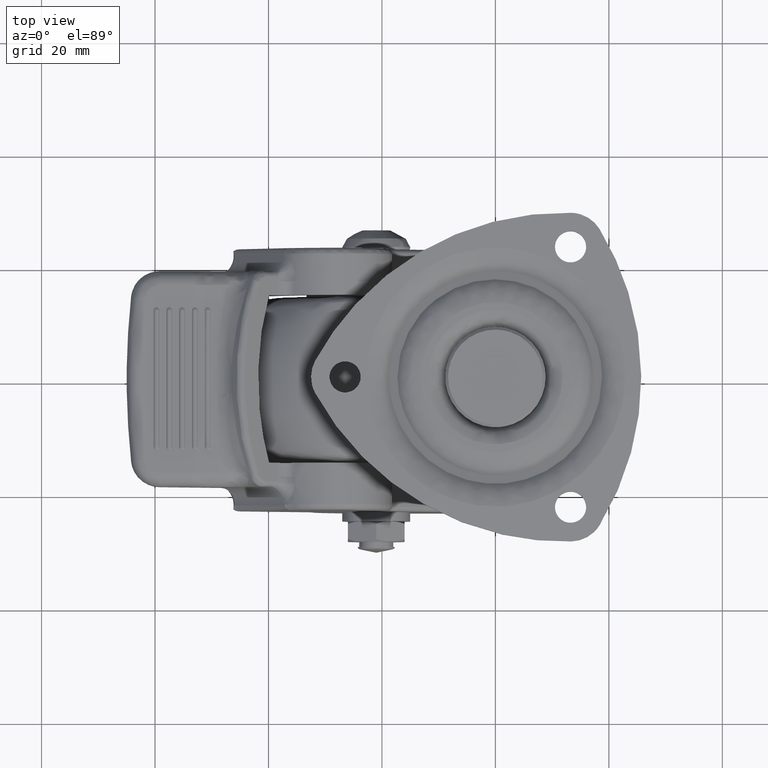
[diagram: clean part render]
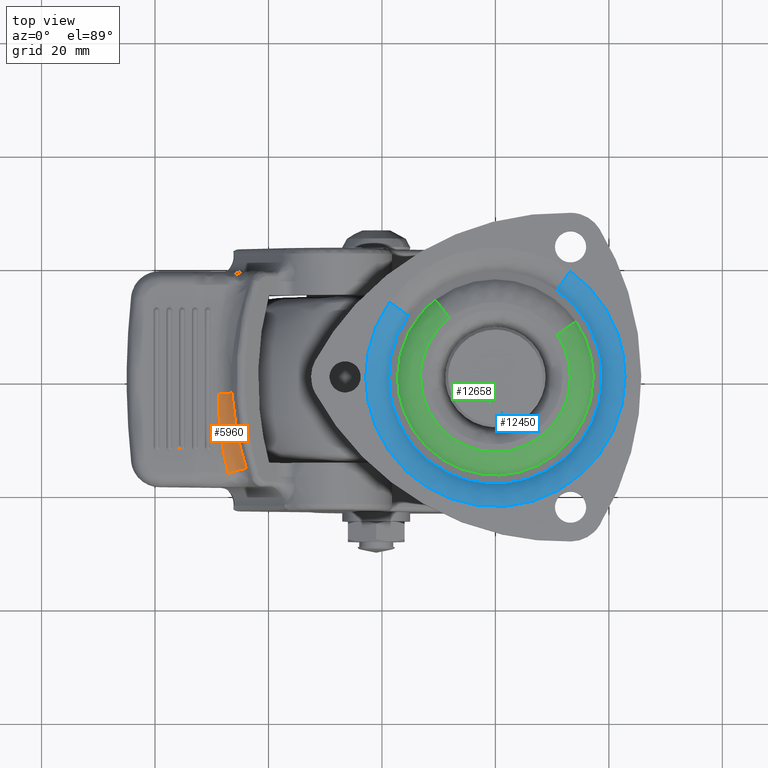
[diagram: same view with three faces highlighted in distinct colors, each labeled with its STEP entity id]
A machine part, top view with three faces highlighted in distinct colors.
Their STEP definitions:

[orange] entity #5960 — the highlighted face is a freeform B-spline surface patch.
#5806=CARTESIAN_POINT('',(-48.868185133040697,-2.682234509029950,-18.427378000000001));
#5807=VERTEX_POINT('',#5806);
#5808=CARTESIAN_POINT('',(-46.444611443495297,-2.521701660425795,-17.188207286405500));
#5809=VERTEX_POINT('',#5808);
#5810=CARTESIAN_POINT('',(-48.868185133040697,-2.682234509029950,-18.427378000000001));
#5811=CARTESIAN_POINT('',(-47.340988791554985,-2.581075967767512,-18.427377999999997));
#5812=CARTESIAN_POINT('',(-46.444611443495312,-2.521701660425799,-17.188207286405500));
#5820=(BOUNDED_CURVE()B_SPLINE_CURVE(2,(#5810,#5811,#5812),.UNSPECIFIED.,.F.,.U.)CURVE()GEOMETRIC_REPRESENTATION_ITEM()QUASI_UNIFORM_CURVE()RATIONAL_B_SPLINE_CURVE((1.0,0.890770199172744,1.0))REPRESENTATION_ITEM(''));
#5821=EDGE_CURVE('',#5807,#5809,#5820,.T.);
#5853=CARTESIAN_POINT('',(-46.441224709851646,-2.453151805348706,-17.177297524356817));
#5854=CARTESIAN_POINT('',(-46.439686360386425,-2.475825132221563,-17.177246839496707));
#5855=CARTESIAN_POINT('',(-46.438148014256917,-2.498498409929812,-17.177196154746497));
#5856=CARTESIAN_POINT('',(-46.282792232224899,-4.788246290504441,-17.172077560917401));
#5857=CARTESIAN_POINT('',(-45.991303636772940,-7.049483253237103,-17.258308341769865));
#5858=CARTESIAN_POINT('',(-45.141980748915650,-11.482140667681442,-17.601620755251972));
#5859=CARTESIAN_POINT('',(-44.584599973608043,-13.660011605290423,-17.858261923533682));
#5860=CARTESIAN_POINT('',(-43.882469824363227,-15.819953090614572,-18.199474253321480));
#5861=CARTESIAN_POINT('',(-43.875519198467074,-15.841335088294372,-18.202852030586939));
#5862=CARTESIAN_POINT('',(-43.868568595265273,-15.862717016160257,-18.206229796823688));
#5863=CARTESIAN_POINT('',(-46.445217986444192,-2.453419734349445,-17.182817579831870));
#5864=CARTESIAN_POINT('',(-46.443681444801918,-2.476092015602450,-17.182769502977504));
#5865=CARTESIAN_POINT('',(-46.442144904826513,-2.498764272260839,-17.182721426175320));
#5866=CARTESIAN_POINT('',(-46.286962949194830,-4.788535565623400,-17.177865937672355));
#5867=CARTESIAN_POINT('',(-45.995648223129429,-7.049800132517333,-17.264366131765609));
#5868=CARTESIAN_POINT('',(-45.146668773606144,-11.482521693877333,-17.608232481195639));
#5869=CARTESIAN_POINT('',(-44.589455451087311,-13.660428554168874,-17.865153932689108));
#5870=CARTESIAN_POINT('',(-43.887495649094433,-15.820416146914175,-18.206672491415461));
#5871=CARTESIAN_POINT('',(-43.880546131411378,-15.841800379926353,-18.210053581409827));
#5872=CARTESIAN_POINT('',(-43.873596625084467,-15.863184577994680,-18.213434665879177));
#5873=CARTESIAN_POINT('',(-47.344047920247490,-2.513726753013612,-18.425303789402339));
#5874=CARTESIAN_POINT('',(-47.343028458318642,-2.536171039371300,-18.425995025028335));
#5875=CARTESIAN_POINT('',(-47.342008748784551,-2.558620776960509,-18.426686428540506));
#5876=CARTESIAN_POINT('',(-47.237726517604848,-4.854479202253596,-18.497393917766004));
#5877=CARTESIAN_POINT('',(-46.999834707082634,-7.123042062620926,-18.664534142539843));
#5878=CARTESIAN_POINT('',(-46.264687150027669,-11.573390304222945,-19.185022620528343));
#5879=CARTESIAN_POINT('',(-45.767985711106860,-13.761631138722130,-19.537994837976282));
#5880=CARTESIAN_POINT('',(-45.132364708258507,-15.935112637711899,-19.989636355640940));
#5881=CARTESIAN_POINT('',(-45.125942266728863,-15.957073928765018,-19.994199831716408));
#5882=CARTESIAN_POINT('',(-45.119517240063260,-15.979044059590803,-19.998765144664347));
#5883=CARTESIAN_POINT('',(-48.875557295379579,-2.612459144824384,-18.427387315215750));
#5884=CARTESIAN_POINT('',(-48.875385268511032,-2.635869002978835,-18.427384210140431));
#5885=CARTESIAN_POINT('',(-48.875213241830131,-2.659278835604998,-18.427381105068527));
#5886=CARTESIAN_POINT('',(-48.857839512916087,-5.023540494324220,-18.427067510238949));
#5887=CARTESIAN_POINT('',(-48.703074639471566,-7.376608803520749,-18.511487683645971));
#5888=CARTESIAN_POINT('',(-48.115948467138281,-12.034060910725156,-18.839118404993869));
#5889=CARTESIAN_POINT('',(-47.684500927252017,-14.345034899421403,-19.081927394274807));
#5890=CARTESIAN_POINT('',(-47.098642286678796,-16.664699795838374,-19.403685520825160));
#5891=CARTESIAN_POINT('',(-47.092842192162067,-16.687664850400353,-19.406870977889838));
#5892=CARTESIAN_POINT('',(-47.087042107173055,-16.710629867238008,-19.410056429721827));
#5893=CARTESIAN_POINT('',(-48.882396993823043,-2.612900082240474,-18.427396620211521));
#5894=CARTESIAN_POINT('',(-48.882227913264138,-2.636314198081592,-18.427390413460824));
#5895=CARTESIAN_POINT('',(-48.882058833073799,-2.659728262884912,-18.427384206723648));
#5896=CARTESIAN_POINT('',(-48.864983631709926,-5.024285994148915,-18.426757395937564));
#5897=CARTESIAN_POINT('',(-48.710482192921077,-7.377711589540802,-18.510822069951168));
#5898=CARTESIAN_POINT('',(-48.123751671291039,-12.036002671597315,-18.837660392996227));
#5899=CARTESIAN_POINT('',(-47.692438129365975,-14.347451052198950,-19.080038601820796));
#5900=CARTESIAN_POINT('',(-47.106622088001565,-16.667660700561783,-19.401307539558363));
#5901=CARTESIAN_POINT('',(-47.100822900215384,-16.690629227375815,-19.404487887599824));
#5902=CARTESIAN_POINT('',(-47.095023731463456,-16.713597678801882,-19.407668225202659));
#5910=(BOUNDED_SURFACE()B_SPLINE_SURFACE(3,2,((#5853,#5863,#5873,#5883,#5893),(#5854,#5864,#5874,#5884,#5894),(#5855,#5865,#5875,#5885,#5895),(#5856,#5866,#5876,#5886,#5896),(#5857,#5867,#5877,#5887,#5897),(#5858,#5868,#5878,#5888,#5898),(#5859,#5869,#5879,#5889,#5899),(#5860,#5870,#5880,#5890,#5900),(#5861,#5871,#5881,#5891,#5901),(#5862,#5872,#5882,#5892,#5902)),.UNSPECIFIED.,.F.,.F.,.U.)B_SPLINE_SURFACE_WITH_KNOTS((4,2,2,2,4),(3,1,1,3),(0.0,0.071705666620248,7.242272488914402,14.412839311208559,14.484544977833380),(0.0,0.019497747874865,3.906449662947995,3.926050010862705),.UNSPECIFIED.)GEOMETRIC_REPRESENTATION_ITEM()RATIONAL_B_SPLINE_SURFACE(((1.001092582014442,1.000546291007221,0.891094761798508,1.000549165671488,1.001098331342976),(1.001093667396233,1.000546833698117,0.890986574256584,1.000549711218104,1.001099422436207),(1.001094752778024,1.000547376389012,0.890878386714660,1.000550256764719,1.001100513529438),(1.001204376341345,1.000602188170672,0.879951444738545,1.000605356974101,1.001210713948201),(1.001324539219855,1.000662269609927,0.867973976013891,1.000665754570796,1.001331509141592),(1.001590625659531,1.000795312829765,0.841451292396519,1.000799497883780,1.001598995767560),(1.001736808304670,1.000868404152335,0.826880252804630,1.000872973823725,1.001745947647450),(1.001902008978526,1.000951004489263,0.810413554195689,1.000956008815871,1.001912017631743),(1.001903644628726,1.000951822314363,0.810250517579396,1.000956830944488,1.001913661888977),(1.001905280278926,1.000952640139463,0.810087480963103,1.000957653073105,1.001915306146211)))REPRESENTATION_ITEM('')SURFACE());
#5911=CARTESIAN_POINT('',(-47.096448243937601,-16.638771659013649,-19.402877469059302));
#5912=VERTEX_POINT('',#5911);
#5913=CARTESIAN_POINT('',(-43.899479432127848,-15.799493610597899,-18.210499999820250));
#5914=VERTEX_POINT('',#5913);
#5915=CARTESIAN_POINT('',(-47.096448243937601,-16.638771659013649,-19.402877469059302));
#5916=CARTESIAN_POINT('',(-45.138784566210738,-15.913160181099283,-19.985074715328778));
#5917=CARTESIAN_POINT('',(-43.899479432127968,-15.799493610597921,-18.210499999820161));
#5925=(BOUNDED_CURVE()B_SPLINE_CURVE(2,(#5915,#5916,#5917),.UNSPECIFIED.,.F.,.U.)CURVE()GEOMETRIC_REPRESENTATION_ITEM()QUASI_UNIFORM_CURVE()RATIONAL_B_SPLINE_CURVE((1.0,0.810576590812144,1.0))REPRESENTATION_ITEM(''));
#5926=EDGE_CURVE('',#5912,#5914,#5925,.T.);
#5927=ORIENTED_EDGE('',*,*,#5926,.T.);
#5928=CARTESIAN_POINT('',(-46.444611443495297,-2.521701660425795,-17.188207286405500));
#5929=CARTESIAN_POINT('',(-46.367821414181641,-3.656055988518551,-17.185932697335652));
#5930=CARTESIAN_POINT('',(-46.256985176603308,-4.786521373495437,-17.206334535171958));
#5931=CARTESIAN_POINT('',(-46.075597542966293,-6.194723043260479,-17.259684593626961));
#5932=CARTESIAN_POINT('',(-46.037168321824687,-6.476150717709321,-17.271751304991952));
#5933=CARTESIAN_POINT('',(-45.956150646694340,-7.037543128114398,-17.298613111302888));
#5934=CARTESIAN_POINT('',(-45.828340022007382,-7.877798877179796,-17.343011024964230));
#5935=CARTESIAN_POINT('',(-45.681730320637797,-8.712580223226009,-17.399602419504038));
#5936=CARTESIAN_POINT('',(-45.363485983711492,-10.374880513244030,-17.528764778428059));
#5937=CARTESIAN_POINT('',(-45.117993218582271,-11.473407119993659,-17.636166117044201));
#5938=CARTESIAN_POINT('',(-44.559689937168478,-13.651075947197681,-17.892425070178330));
#5939=CARTESIAN_POINT('',(-44.246883545756333,-14.730218707509810,-18.041286676924919));
#5940=CARTESIAN_POINT('',(-43.899479432127897,-15.799493610597899,-18.210499999820250));
#5941=B_SPLINE_CURVE_WITH_KNOTS('',3,(#5928,#5929,#5930,#5931,#5932,#5933,#5934,#5935,#5936,#5937,#5938,#5939,#5940),.UNSPECIFIED.,.F.,.U.,(4,2,2,1,2,2,4),(0.0,0.250000000000001,0.312500000000001,0.375000000000001,0.500000000000001,0.750000000000000,1.0),.UNSPECIFIED.);
#5942=EDGE_CURVE('',#5809,#5914,#5941,.T.);
#5943=ORIENTED_EDGE('',*,*,#5942,.F.);
#5944=ORIENTED_EDGE('',*,*,#5821,.F.);
#5945=CARTESIAN_POINT('',(-47.096448243937601,-16.638771659013649,-19.402877469059302));
#5946=CARTESIAN_POINT('',(-47.384418287529542,-15.498929187595049,-19.244492906798609));
#5947=CARTESIAN_POINT('',(-47.636161991897339,-14.353201218841599,-19.104516986606050));
#5948=CARTESIAN_POINT('',(-48.069621225536423,-12.050201098605120,-18.862540886123909));
#5949=CARTESIAN_POINT('',(-48.251331257229189,-10.892928481203230,-18.760537386830269));
#5950=CARTESIAN_POINT('',(-48.545861466065681,-8.566887294300839,-18.595883547488089));
#5951=CARTESIAN_POINT('',(-48.658679744640509,-7.398118728939018,-18.533229699978651));
#5952=CARTESIAN_POINT('',(-48.815406292593707,-5.048963991231533,-18.448979083320790));
#5953=CARTESIAN_POINT('',(-48.859315842965628,-3.868578283045291,-18.427378000000019));
#5954=CARTESIAN_POINT('',(-48.868185133040598,-2.682234509030070,-18.427378000000001));
#5955=B_SPLINE_CURVE_WITH_KNOTS('',3,(#5945,#5946,#5947,#5948,#5949,#5950,#5951,#5952,#5953,#5954),.UNSPECIFIED.,.F.,.U.,(4,2,2,2,4),(0.0,0.250000000000000,0.500000000000000,0.750000000000000,1.0),.UNSPECIFIED.);
#5956=EDGE_CURVE('',#5912,#5807,#5955,.T.);
#5957=ORIENTED_EDGE('',*,*,#5956,.F.);
#5958=EDGE_LOOP('',(#5927,#5943,#5944,#5957));
#5959=FACE_OUTER_BOUND('',#5958,.T.);
#5960=ADVANCED_FACE('',(#5959),#5910,.F.);

[blue] entity #12450 — the highlighted face is a freeform B-spline surface patch.
#12295=CARTESIAN_POINT('',(10.784301983175190,15.242494924516313,-2.254683351545476));
#12296=CARTESIAN_POINT('',(26.026796907691487,4.458192941341120,-2.254683351545476));
#12297=CARTESIAN_POINT('',(15.242494924516313,-10.784301983175189,-2.254683351545476));
#12298=CARTESIAN_POINT('',(4.458192941341122,-26.026796907691487,-2.254683351545476));
#12299=CARTESIAN_POINT('',(-10.784301983175183,-15.242494924516313,-2.254683351545476));
#12300=CARTESIAN_POINT('',(-26.026796907691487,-4.458192941341123,-2.254683351545476));
#12301=CARTESIAN_POINT('',(-15.242494924516313,10.784301983175181,-2.254683351545476));
#12302=CARTESIAN_POINT('',(11.686646660563257,16.517865753959857,0.123447379301364));
#12303=CARTESIAN_POINT('',(28.204512414523116,4.831219093396607,0.123447379301363));
#12304=CARTESIAN_POINT('',(16.517865753959857,-11.686646660563255,0.123447379301364));
#12305=CARTESIAN_POINT('',(4.831219093396610,-28.204512414523116,0.123447379301363));
#12306=CARTESIAN_POINT('',(-11.686646660563252,-16.517865753959857,0.123447379301364));
#12307=CARTESIAN_POINT('',(-28.204512414523116,-4.831219093396611,0.123447379301363));
#12308=CARTESIAN_POINT('',(-16.517865753959857,11.686646660563252,0.123447379301364));
#12309=CARTESIAN_POINT('',(13.328394057546006,18.838305816273436,-0.005105505204566));
#12310=CARTESIAN_POINT('',(32.166699873819432,5.509911758727430,-0.005105505204566));
#12311=CARTESIAN_POINT('',(18.838305816273436,-13.328394057546006,-0.005105505204566));
#12312=CARTESIAN_POINT('',(5.509911758727431,-32.166699873819432,-0.005105505204566));
#12313=CARTESIAN_POINT('',(-13.328394057545996,-18.838305816273436,-0.005105505204566));
#12314=CARTESIAN_POINT('',(-32.166699873819432,-5.509911758727434,-0.005105505204566));
#12315=CARTESIAN_POINT('',(-18.838305816273436,13.328394057545996,-0.005105505204566));
#12323=(BOUNDED_SURFACE()B_SPLINE_SURFACE(2,2,((#12295,#12302,#12309),(#12296,#12303,#12310),(#12297,#12304,#12311),(#12298,#12305,#12312),(#12299,#12306,#12313),(#12300,#12307,#12314),(#12301,#12308,#12315)),.UNSPECIFIED.,.F.,.F.,.U.)B_SPLINE_SURFACE_WITH_KNOTS((3,2,2,3),(3,3),(0.0,38.234504855069112,76.469009710138209,114.703514565207300),(0.0,5.292321078349512),.UNSPECIFIED.)GEOMETRIC_REPRESENTATION_ITEM()RATIONAL_B_SPLINE_SURFACE(((0.924786724053157,0.803551614694217,0.924326571111157),(0.653922963729280,0.568196795783681,0.653597586463609),(0.924786724053157,0.803551614694217,0.924326571111157),(0.653922963729280,0.568196795783681,0.653597586463609),(0.924786724053157,0.803551614694217,0.924326571111157),(0.653922963729280,0.568196795783681,0.653597586463609),(0.924786724053157,0.803551614694217,0.924326571111157)))REPRESENTATION_ITEM('')SURFACE());
#12324=CARTESIAN_POINT('',(10.858366824369050,15.347177913520181,-2.068774999933832));
#12325=VERTEX_POINT('',#12324);
#12326=CARTESIAN_POINT('',(18.800000000000001,0.0,-2.068775000000000));
#12327=VERTEX_POINT('',#12326);
#12328=CARTESIAN_POINT('',(10.858366824369046,15.347177913520177,-2.068774999933831));
#12329=CARTESIAN_POINT('',(18.800000000000008,9.728349051795371,-2.068775000000001));
#12330=CARTESIAN_POINT('',(18.800000000000001,0.0,-2.068775000000000));
#12338=(BOUNDED_CURVE()B_SPLINE_CURVE(2,(#12328,#12329,#12330),.UNSPECIFIED.,.F.,.U.)B_SPLINE_CURVE_WITH_KNOTS((3,3),(0.349340826588343,0.500000000000000),.UNSPECIFIED.)CURVE()GEOMETRIC_REPRESENTATION_ITEM()RATIONAL_B_SPLINE_CURVE((0.859724235322383,0.823491799022743,1.0))REPRESENTATION_ITEM(''));
#12339=EDGE_CURVE('',#12325,#12327,#12338,.T.);
#12340=ORIENTED_EDGE('',*,*,#12339,.T.);
#12341=CARTESIAN_POINT('',(-18.800000000000001,0.0,-2.068775000000000));
#12342=VERTEX_POINT('',#12341);
#12343=CARTESIAN_POINT('',(18.800000000000001,0.0,-2.068775000000000));
#12344=CARTESIAN_POINT('',(18.799999999999997,-18.799999999999997,-2.068775000000001));
#12345=CARTESIAN_POINT('',(0.0,-18.800000000000001,-2.068775000000000));
#12346=CARTESIAN_POINT('',(-18.799999999999997,-18.799999999999997,-2.068775000000001));
#12347=CARTESIAN_POINT('',(-18.800000000000001,0.0,-2.068775000000000));
#12355=(BOUNDED_CURVE()B_SPLINE_CURVE(2,(#12343,#12344,#12345,#12346,#12347),.UNSPECIFIED.,.F.,.U.)B_SPLINE_CURVE_WITH_KNOTS((3,2,3),(0.500000000000000,0.750000000000000,1.0),.UNSPECIFIED.)CURVE()GEOMETRIC_REPRESENTATION_ITEM()RATIONAL_B_SPLINE_CURVE((1.0,0.707106781186547,1.0,0.707106781186547,1.0))REPRESENTATION_ITEM(''));
#12356=EDGE_CURVE('',#12327,#12342,#12355,.T.);
#12357=ORIENTED_EDGE('',*,*,#12356,.T.);
#12358=CARTESIAN_POINT('',(-15.347177913520181,10.858366824369050,-2.068774999933831));
#12359=VERTEX_POINT('',#12358);
#12360=CARTESIAN_POINT('',(-18.800000000000001,0.0,-2.068775000000000));
#12361=CARTESIAN_POINT('',(-18.800000000000001,5.978160093197330,-2.068775000000000));
#12362=CARTESIAN_POINT('',(-15.347177913520177,10.858366824369046,-2.068774999933831));
#12370=(BOUNDED_CURVE()B_SPLINE_CURVE(2,(#12360,#12361,#12362),.UNSPECIFIED.,.F.,.U.)B_SPLINE_CURVE_WITH_KNOTS((3,3),(0.0,0.099340826588343),.UNSPECIFIED.)CURVE()GEOMETRIC_REPRESENTATION_ITEM()RATIONAL_B_SPLINE_CURVE((1.0,0.883614982163805,0.859724235322383))REPRESENTATION_ITEM(''));
#12371=EDGE_CURVE('',#12342,#12359,#12370,.T.);
#12372=ORIENTED_EDGE('',*,*,#12371,.T.);
#12373=CARTESIAN_POINT('',(-18.653898074394419,13.197922715108330,-1.093390E-015));
#12374=VERTEX_POINT('',#12373);
#12375=CARTESIAN_POINT('',(-15.347177913520179,10.858366824369046,-2.068774999933831));
#12376=CARTESIAN_POINT('',(-16.569276744533315,11.723020735171382,-1.356902E-009));
#12377=CARTESIAN_POINT('',(-18.653898074394419,13.197922715108326,-1.093390E-015));
#12385=(BOUNDED_CURVE()B_SPLINE_CURVE(2,(#12375,#12376,#12377),.UNSPECIFIED.,.F.,.U.)B_SPLINE_CURVE_WITH_KNOTS((3,3),(-1.607795409204541,-0.394741634238144),.UNSPECIFIED.)CURVE()GEOMETRIC_REPRESENTATION_ITEM()RATIONAL_B_SPLINE_CURVE((0.914274471626309,0.814042982510911,0.913856088008467))REPRESENTATION_ITEM(''));
#12386=EDGE_CURVE('',#12359,#12374,#12385,.T.);
#12387=ORIENTED_EDGE('',*,*,#12386,.T.);
#12388=CARTESIAN_POINT('',(-22.850669080457550,0.0,0.0));
#12389=VERTEX_POINT('',#12388);
#12390=CARTESIAN_POINT('',(-22.850669080457550,0.0,0.0));
#12391=CARTESIAN_POINT('',(-22.850669080457546,7.266221170281439,0.0));
#12392=CARTESIAN_POINT('',(-18.653898074394416,13.197922715108326,-1.093390E-015));
#12400=(BOUNDED_CURVE()B_SPLINE_CURVE(2,(#12390,#12391,#12392),.UNSPECIFIED.,.F.,.U.)B_SPLINE_CURVE_WITH_KNOTS((3,3),(0.0,0.099340826589398),.UNSPECIFIED.)CURVE()GEOMETRIC_REPRESENTATION_ITEM()RATIONAL_B_SPLINE_CURVE((1.0,0.883614982162569,0.859724235321876))REPRESENTATION_ITEM(''));
#12401=EDGE_CURVE('',#12389,#12374,#12400,.T.);
#12402=ORIENTED_EDGE('',*,*,#12401,.F.);
#12403=CARTESIAN_POINT('',(22.850669080457550,0.0,0.0));
#12404=VERTEX_POINT('',#12403);
#12405=CARTESIAN_POINT('',(22.850669080457550,0.0,0.0));
#12406=CARTESIAN_POINT('',(22.850669080457546,-22.850669080457546,0.0));
#12407=CARTESIAN_POINT('',(0.0,-22.850669080457550,0.0));
#12408=CARTESIAN_POINT('',(-22.850669080457546,-22.850669080457546,0.0));
#12409=CARTESIAN_POINT('',(-22.850669080457550,0.0,0.0));
#12417=(BOUNDED_CURVE()B_SPLINE_CURVE(2,(#12405,#12406,#12407,#12408,#12409),.UNSPECIFIED.,.F.,.U.)B_SPLINE_CURVE_WITH_KNOTS((3,2,3),(0.500000000000000,0.750000000000000,1.0),.UNSPECIFIED.)CURVE()GEOMETRIC_REPRESENTATION_ITEM()RATIONAL_B_SPLINE_CURVE((1.0,0.707106781186547,1.0,0.707106781186547,1.0))REPRESENTATION_ITEM(''));
#12418=EDGE_CURVE('',#12404,#12389,#12417,.T.);
#12419=ORIENTED_EDGE('',*,*,#12418,.F.);
#12420=CARTESIAN_POINT('',(13.197922715108341,18.653898074394419,-9.719018E-016));
#12421=VERTEX_POINT('',#12420);
#12422=CARTESIAN_POINT('',(13.197922715108339,18.653898074394416,-9.719018E-016));
#12423=CARTESIAN_POINT('',(22.850669080457550,11.824430046801535,0.0));
#12424=CARTESIAN_POINT('',(22.850669080457550,0.0,0.0));
#12432=(BOUNDED_CURVE()B_SPLINE_CURVE(2,(#12422,#12423,#12424),.UNSPECIFIED.,.F.,.U.)B_SPLINE_CURVE_WITH_KNOTS((3,3),(0.349340826589398,0.500000000000000),.UNSPECIFIED.)CURVE()GEOMETRIC_REPRESENTATION_ITEM()RATIONAL_B_SPLINE_CURVE((0.859724235321876,0.823491799023979,1.0))REPRESENTATION_ITEM(''));
#12433=EDGE_CURVE('',#12421,#12404,#12432,.T.);
#12434=ORIENTED_EDGE('',*,*,#12433,.F.);
#12435=CARTESIAN_POINT('',(10.858366824369046,15.347177913520179,-2.068774999933831));
#12436=CARTESIAN_POINT('',(11.723020735171378,16.569276744533322,-1.356903E-009));
#12437=CARTESIAN_POINT('',(13.197922715108337,18.653898074394419,-9.719018E-016));
#12445=(BOUNDED_CURVE()B_SPLINE_CURVE(2,(#12435,#12436,#12437),.UNSPECIFIED.,.F.,.U.)B_SPLINE_CURVE_WITH_KNOTS((3,3),(-1.607795409204541,-0.394741634238144),.UNSPECIFIED.)CURVE()GEOMETRIC_REPRESENTATION_ITEM()RATIONAL_B_SPLINE_CURVE((0.914274471626309,0.814042982510911,0.913856088008467))REPRESENTATION_ITEM(''));
#12446=EDGE_CURVE('',#12325,#12421,#12445,.T.);
#12447=ORIENTED_EDGE('',*,*,#12446,.F.);
#12448=EDGE_LOOP('',(#12340,#12357,#12372,#12387,#12402,#12419,#12434,#12447));
#12449=FACE_OUTER_BOUND('',#12448,.T.);
#12450=ADVANCED_FACE('',(#12449),#12323,.T.);

[green] entity #12658 — the highlighted face is a freeform B-spline surface patch.
#12503=CARTESIAN_POINT('',(-10.660627691782096,13.724463558583620,-2.254983057805083));
#12504=CARTESIAN_POINT('',(-23.621372064123381,3.657063126347719,-2.254983057805082));
#12505=CARTESIAN_POINT('',(-14.311704867972390,-9.858244596566692,-2.254983057805082));
#12506=CARTESIAN_POINT('',(-4.453460271405697,-24.169949464539076,-2.254983057805083));
#12507=CARTESIAN_POINT('',(9.858244596566692,-14.311704867972390,-2.254983057805082));
#12508=CARTESIAN_POINT('',(24.169949464539076,-4.453460271405698,-2.254983057805083));
#12509=CARTESIAN_POINT('',(14.311704867972390,9.858244596566690,-2.254983057805082));
#12510=CARTESIAN_POINT('',(-9.702351391694766,12.490781214556053,0.123260597122288));
#12511=CARTESIAN_POINT('',(-21.498063598708782,3.328332302683014,0.123260597122288));
#12512=CARTESIAN_POINT('',(-13.025235817055762,-8.972093946672395,0.123260597122288));
#12513=CARTESIAN_POINT('',(-4.053141870383366,-21.997329763728168,0.123260597122288));
#12514=CARTESIAN_POINT('',(8.972093946672395,-13.025235817055762,0.123260597122288));
#12515=CARTESIAN_POINT('',(21.997329763728168,-4.053141870383371,0.123260597122288));
#12516=CARTESIAN_POINT('',(13.025235817055762,8.972093946672395,0.123260597122288));
#12517=CARTESIAN_POINT('',(-7.958644682509930,10.245937863961139,-0.005089389672772));
#12518=CARTESIAN_POINT('',(-17.634431349351253,2.730164381084863,-0.005089389672772));
#12519=CARTESIAN_POINT('',(-10.684340278850822,-7.359629114318333,-0.005089389672772));
#12520=CARTESIAN_POINT('',(-3.324711164532491,-18.043969393169160,-0.005089389672772));
#12521=CARTESIAN_POINT('',(7.359629114318333,-10.684340278850822,-0.005089389672772));
#12522=CARTESIAN_POINT('',(18.043969393169160,-3.324711164532493,-0.005089389672772));
#12523=CARTESIAN_POINT('',(10.684340278850824,7.359629114318331,-0.005089389672772));
#12531=(BOUNDED_SURFACE()B_SPLINE_SURFACE(2,2,((#12503,#12510,#12517),(#12504,#12511,#12518),(#12505,#12512,#12519),(#12506,#12513,#12520),(#12507,#12514,#12521),(#12508,#12515,#12522),(#12509,#12516,#12523)),.UNSPECIFIED.,.F.,.F.,.U.)B_SPLINE_SURFACE_WITH_KNOTS((3,2,2,3),(3,3),(0.0,27.641787019015521,56.435315163823347,85.228843308631184),(0.0,5.292320125330656),.UNSPECIFIED.)GEOMETRIC_REPRESENTATION_ITEM()RATIONAL_B_SPLINE_SURFACE(((0.904524520146832,0.787238538536154,0.907051395029548),(0.665154708385884,0.578906827694558,0.667012881037155),(0.925339286386914,0.805354339478901,0.927924309289756),(0.654313684302508,0.569471514703544,0.656141571526630),(0.925339286386914,0.805354339478901,0.927924309289756),(0.654313684302508,0.569471514703544,0.656141571526630),(0.925339286386914,0.805354339478901,0.927924309289756)))REPRESENTATION_ITEM('')SURFACE());
#12532=CARTESIAN_POINT('',(-8.096999572229132,10.424055578504991,-9.905429E-016));
#12533=VERTEX_POINT('',#12532);
#12534=CARTESIAN_POINT('',(-13.199330919542421,0.0,0.0));
#12535=VERTEX_POINT('',#12534);
#12536=CARTESIAN_POINT('',(-8.096999572229132,10.424055578504994,-9.905429E-016));
#12537=CARTESIAN_POINT('',(-13.199330919542417,6.460763704952251,0.0));
#12538=CARTESIAN_POINT('',(-13.199330919542421,0.0,0.0));
#12546=(BOUNDED_CURVE()B_SPLINE_CURVE(2,(#12536,#12537,#12538),.UNSPECIFIED.,.F.,.U.)B_SPLINE_CURVE_WITH_KNOTS((3,3),(0.856116047956512,1.0),.UNSPECIFIED.)CURVE()GEOMETRIC_REPRESENTATION_ITEM()RATIONAL_B_SPLINE_CURVE((0.856895687852808,0.831429464601529,1.0))REPRESENTATION_ITEM(''));
#12547=EDGE_CURVE('',#12533,#12535,#12546,.T.);
#12548=ORIENTED_EDGE('',*,*,#12547,.F.);
#12549=CARTESIAN_POINT('',(-10.581842856992370,13.623037216530340,-2.068776652399121));
#12550=VERTEX_POINT('',#12549);
#12551=CARTESIAN_POINT('',(-10.581842856992374,13.623037216530346,-2.068776652399121));
#12552=CARTESIAN_POINT('',(-9.663494223816450,12.440756600625782,-2.044992E-009));
#12553=CARTESIAN_POINT('',(-8.096999572229132,10.424055578504994,-9.905429E-016));
#12561=(BOUNDED_CURVE()B_SPLINE_CURVE(2,(#12551,#12552,#12553),.UNSPECIFIED.,.F.,.U.)B_SPLINE_CURVE_WITH_KNOTS((3,3),(-1.604402284492481,-0.381259844846652),.UNSPECIFIED.)CURVE()GEOMETRIC_REPRESENTATION_ITEM()RATIONAL_B_SPLINE_CURVE((0.894360832356013,0.797516979636053,0.896658200632449))REPRESENTATION_ITEM(''));
#12562=EDGE_CURVE('',#12550,#12533,#12561,.T.);
#12563=ORIENTED_EDGE('',*,*,#12562,.F.);
#12564=CARTESIAN_POINT('',(-17.250000000000000,0.0,-2.068775000000000));
#12565=VERTEX_POINT('',#12564);
#12566=CARTESIAN_POINT('',(-17.250000000000000,0.0,-2.068775000000000));
#12567=CARTESIAN_POINT('',(-17.250000366757625,8.443472329072451,-2.068775826199560));
#12568=CARTESIAN_POINT('',(-10.581842856992374,13.623037216530342,-2.068776652399121));
#12576=(BOUNDED_CURVE()B_SPLINE_CURVE(2,(#12566,#12567,#12568),.UNSPECIFIED.,.F.,.U.)B_SPLINE_CURVE_WITH_KNOTS((3,3),(0.0,0.143883957666823),.UNSPECIFIED.)CURVE()GEOMETRIC_REPRESENTATION_ITEM()RATIONAL_B_SPLINE_CURVE((1.0,0.831429458013383,0.856895689843372))REPRESENTATION_ITEM(''));
#12577=EDGE_CURVE('',#12565,#12550,#12576,.T.);
#12578=ORIENTED_EDGE('',*,*,#12577,.F.);
#12579=CARTESIAN_POINT('',(17.250000000000000,0.0,-2.068775000000000));
#12580=VERTEX_POINT('',#12579);
#12581=CARTESIAN_POINT('',(17.250000000000000,0.0,-2.068775000000000));
#12582=CARTESIAN_POINT('',(17.250000000000004,-17.250000000000004,-2.068775000000000));
#12583=CARTESIAN_POINT('',(0.0,-17.250000000000000,-2.068775000000000));
#12584=CARTESIAN_POINT('',(-17.250000000000004,-17.250000000000004,-2.068775000000000));
#12585=CARTESIAN_POINT('',(-17.250000000000000,0.0,-2.068775000000000));
#12593=(BOUNDED_CURVE()B_SPLINE_CURVE(2,(#12581,#12582,#12583,#12584,#12585),.UNSPECIFIED.,.F.,.U.)B_SPLINE_CURVE_WITH_KNOTS((3,2,3),(0.500000000000000,0.750000000000000,1.0),.UNSPECIFIED.)CURVE()GEOMETRIC_REPRESENTATION_ITEM()RATIONAL_B_SPLINE_CURVE((1.0,0.707106781186548,1.0,0.707106781186548,1.0))REPRESENTATION_ITEM(''));
#12594=EDGE_CURVE('',#12580,#12565,#12593,.T.);
#12595=ORIENTED_EDGE('',*,*,#12594,.F.);
#12596=CARTESIAN_POINT('',(14.205937308855130,9.785389372322882,-2.068774999643191));
#12597=VERTEX_POINT('',#12596);
#12598=CARTESIAN_POINT('',(14.205937308855132,9.785389372322882,-2.068774999643191));
#12599=CARTESIAN_POINT('',(17.249999999999996,5.366171893632441,-2.068775000000000));
#12600=CARTESIAN_POINT('',(17.250000000000000,0.0,-2.068775000000000));
#12608=(BOUNDED_CURVE()B_SPLINE_CURVE(2,(#12598,#12599,#12600),.UNSPECIFIED.,.F.,.U.)B_SPLINE_CURVE_WITH_KNOTS((3,3),(0.402570046491320,0.500000000000000),.UNSPECIFIED.)CURVE()GEOMETRIC_REPRESENTATION_ITEM()RATIONAL_B_SPLINE_CURVE((0.860677560885705,0.885853709231991,1.0))REPRESENTATION_ITEM(''));
#12609=EDGE_CURVE('',#12597,#12580,#12608,.T.);
#12610=ORIENTED_EDGE('',*,*,#12609,.F.);
#12611=CARTESIAN_POINT('',(10.870079279898199,7.487570580533580,-9.077451E-016));
#12612=VERTEX_POINT('',#12611);
#12613=CARTESIAN_POINT('',(14.205937308855130,9.785389372322882,-2.068774999643191));
#12614=CARTESIAN_POINT('',(12.973069693719459,8.936160673295948,-1.012052E-009));
#12615=CARTESIAN_POINT('',(10.870079279898203,7.487570580533580,-9.077451E-016));
#12623=(BOUNDED_CURVE()B_SPLINE_CURVE(2,(#12613,#12614,#12615),.UNSPECIFIED.,.F.,.U.)B_SPLINE_CURVE_WITH_KNOTS((3,3),(-1.604401736456949,-0.381259844302068),.UNSPECIFIED.)CURVE()GEOMETRIC_REPRESENTATION_ITEM()RATIONAL_B_SPLINE_CURVE((0.914941624740991,0.815869351736809,0.917291948540221))REPRESENTATION_ITEM(''));
#12624=EDGE_CURVE('',#12597,#12612,#12623,.T.);
#12625=ORIENTED_EDGE('',*,*,#12624,.T.);
#12626=CARTESIAN_POINT('',(13.199330919542421,0.0,0.0));
#12627=VERTEX_POINT('',#12626);
#12628=CARTESIAN_POINT('',(13.199330919542421,0.0,0.0));
#12629=CARTESIAN_POINT('',(13.199330919542424,4.106079918617424,0.0));
#12630=CARTESIAN_POINT('',(10.870079279898205,7.487570580533580,-9.077451E-016));
#12638=(BOUNDED_CURVE()B_SPLINE_CURVE(2,(#12628,#12629,#12630),.UNSPECIFIED.,.F.,.U.)B_SPLINE_CURVE_WITH_KNOTS((3,3),(0.500000000000000,0.597429953509836),.UNSPECIFIED.)CURVE()GEOMETRIC_REPRESENTATION_ITEM()RATIONAL_B_SPLINE_CURVE((1.0,0.885853709230637,0.860677560885108))REPRESENTATION_ITEM(''));
#12639=EDGE_CURVE('',#12627,#12612,#12638,.T.);
#12640=ORIENTED_EDGE('',*,*,#12639,.F.);
#12641=CARTESIAN_POINT('',(-13.199330919542421,0.0,0.0));
#12642=CARTESIAN_POINT('',(-13.199330919542419,-13.199330919542419,0.0));
#12643=CARTESIAN_POINT('',(0.0,-13.199330919542421,0.0));
#12644=CARTESIAN_POINT('',(13.199330919542419,-13.199330919542419,0.0));
#12645=CARTESIAN_POINT('',(13.199330919542421,0.0,0.0));
#12653=(BOUNDED_CURVE()B_SPLINE_CURVE(2,(#12641,#12642,#12643,#12644,#12645),.UNSPECIFIED.,.F.,.U.)B_SPLINE_CURVE_WITH_KNOTS((3,2,3),(0.0,0.250000000000000,0.500000000000000),.UNSPECIFIED.)CURVE()GEOMETRIC_REPRESENTATION_ITEM()RATIONAL_B_SPLINE_CURVE((1.0,0.707106781186547,1.0,0.707106781186547,1.0))REPRESENTATION_ITEM(''));
#12654=EDGE_CURVE('',#12535,#12627,#12653,.T.);
#12655=ORIENTED_EDGE('',*,*,#12654,.F.);
#12656=EDGE_LOOP('',(#12548,#12563,#12578,#12595,#12610,#12625,#12640,#12655));
#12657=FACE_OUTER_BOUND('',#12656,.T.);
#12658=ADVANCED_FACE('',(#12657),#12531,.T.);